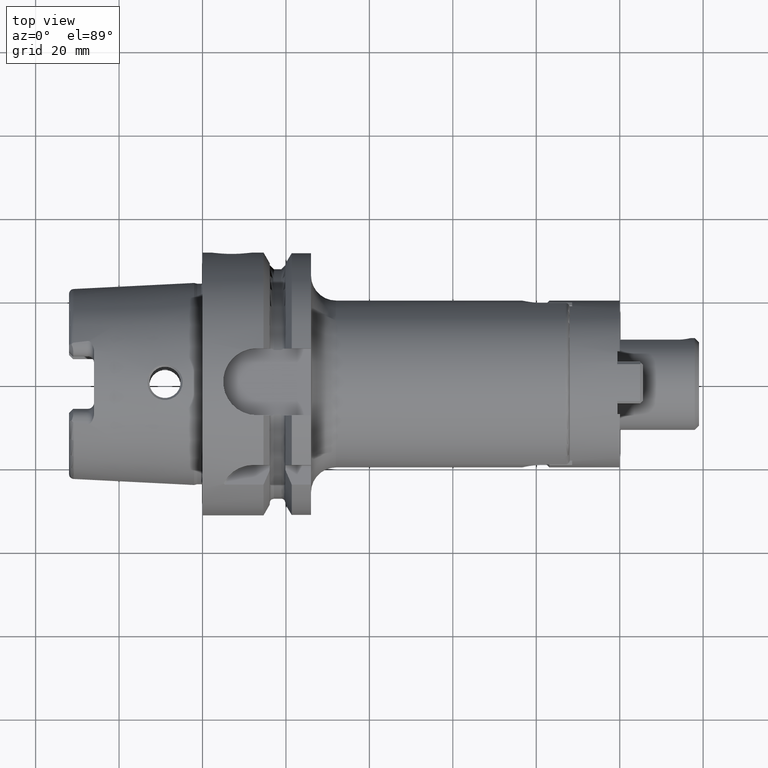
[diagram: clean part render]
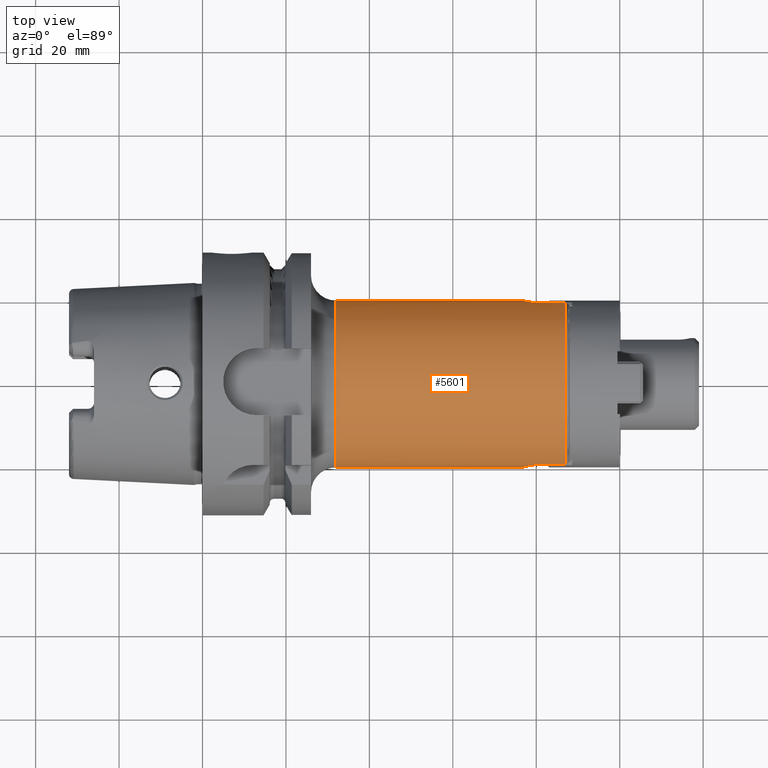
[diagram: same view with one face highlighted and labeled with its STEP entity id]
A machine part, top view. The second image highlights one B-rep face of the part: STEP entity #5601.
In plain terms, the highlighted cylindrical surface (partial cylindrical patch) has radius 20 mm, axis along (1, 0, 0).
Its self-contained STEP definition (entity closure, byte-faithful):
#1966=CARTESIAN_POINT('',(7.65E1,-2.E1,0.E0));
#1967=CARTESIAN_POINT('',(7.65E1,-2.E1,2.210316985101E-1));
#1968=CARTESIAN_POINT('',(7.652858433791E1,-1.999275187604E1,
6.622088010446E-1));
#1969=CARTESIAN_POINT('',(7.666250657120E1,-1.995934317472E1,1.330885321392E0));
#1970=CARTESIAN_POINT('',(7.688581336342E1,-1.990553805266E1,1.974846319321E0));
#1971=CARTESIAN_POINT('',(7.718759943961E1,-1.983663801983E1,2.572670306998E0));
#1972=CARTESIAN_POINT('',(7.756043524236E1,-1.975755263295E1,3.119690324571E0));
#1973=CARTESIAN_POINT('',(7.800440178715E1,-1.967220940632E1,3.616501821920E0));
#1974=CARTESIAN_POINT('',(7.850724505372E1,-1.958739316333E1,4.048210291657E0));
#1975=CARTESIAN_POINT('',(7.905352002141E1,-1.950960497338E1,4.405798185851E0));
#1976=CARTESIAN_POINT('',(7.963916058186E1,-1.944296624357E1,4.689570260974E0));
#1977=CARTESIAN_POINT('',(8.025682388552E1,-1.939167950742E1,4.896145221153E0));
#1978=CARTESIAN_POINT('',(8.089839903832E1,-1.935930844241E1,5.021881595025E0));
#1979=CARTESIAN_POINT('',(8.133133415069E1,-1.935193788746E1,5.05E0));
#1980=CARTESIAN_POINT('',(8.155E1,-1.935193788746E1,5.05E0));
#1982=CARTESIAN_POINT('',(3.2E1,0.E0,0.E0));
#1983=DIRECTION('',(1.E0,0.E0,0.E0));
#1984=DIRECTION('',(0.E0,1.E0,0.E0));
#1985=AXIS2_PLACEMENT_3D('',#1982,#1983,#1984);
#1987=CARTESIAN_POINT('',(8.155E1,1.935193788746E1,5.05E0));
#1988=CARTESIAN_POINT('',(8.133133265078E1,1.935193788746E1,5.05E0));
#1989=CARTESIAN_POINT('',(8.089839425174E1,1.935930868142E1,5.021880629584E0));
#1990=CARTESIAN_POINT('',(8.025682594412E1,1.939167923997E1,4.896146399930E0));
#1991=CARTESIAN_POINT('',(7.963914334958E1,1.944296799064E1,4.689562871749E0));
#1992=CARTESIAN_POINT('',(7.905352489755E1,1.950960432751E1,4.405801304566E0));
#1993=CARTESIAN_POINT('',(7.850721923821E1,1.958739700414E1,4.048191863392E0));
#1994=CARTESIAN_POINT('',(7.800437870493E1,1.967221351216E1,3.616481055142E0));
#1995=CARTESIAN_POINT('',(7.756039816815E1,1.975756026698E1,3.119639607895E0));
#1996=CARTESIAN_POINT('',(7.718761029064E1,1.983663569817E1,2.572688709544E0));
#1997=CARTESIAN_POINT('',(7.688578952302E1,1.990554354600E1,1.974793716571E0));
#1998=CARTESIAN_POINT('',(7.666250492037E1,1.995934365798E1,1.330873609399E0));
#1999=CARTESIAN_POINT('',(7.652858005106E1,1.999275292973E1,6.621807014034E-1));
#2000=CARTESIAN_POINT('',(7.65E1,2.E1,2.210212775057E-1));
#2001=CARTESIAN_POINT('',(7.65E1,2.E1,0.E0));
#2003=DIRECTION('',(1.E0,0.E0,0.E0));
#2004=VECTOR('',#2003,5.45E0);
#2005=CARTESIAN_POINT('',(8.155E1,1.935193788746E1,5.05E0));
#2006=LINE('',#2005,#2004);
#2007=CARTESIAN_POINT('',(8.7E1,0.E0,0.E0));
#2008=DIRECTION('',(-1.E0,0.E0,0.E0));
#2009=DIRECTION('',(0.E0,-9.675968943729E-1,2.525E-1));
#2010=AXIS2_PLACEMENT_3D('',#2007,#2008,#2009);
#2012=DIRECTION('',(1.E0,0.E0,0.E0));
#2013=VECTOR('',#2012,5.45E0);
#2014=CARTESIAN_POINT('',(8.155E1,-1.935193788746E1,5.05E0));
#2015=LINE('',#2014,#2013);
#2377=DIRECTION('',(-1.E0,0.E0,1.615640296066E-14));
#2378=VECTOR('',#2377,4.45E1);
#2379=CARTESIAN_POINT('',(7.65E1,2.E1,0.E0));
#2380=LINE('',#2379,#2378);
#2386=DIRECTION('',(-1.E0,0.E0,-1.635814752291E-14));
#2387=VECTOR('',#2386,4.45E1);
#2388=CARTESIAN_POINT('',(7.65E1,-2.E1,0.E0));
#2389=LINE('',#2388,#2387);
#3394=CARTESIAN_POINT('',(3.2E1,-2.E1,0.E0));
#3395=CARTESIAN_POINT('',(3.2E1,2.E1,0.E0));
#3396=VERTEX_POINT('',#3394);
#3397=VERTEX_POINT('',#3395);
#3428=VERTEX_POINT('',#1987);
#3429=VERTEX_POINT('',#2001);
#3430=CARTESIAN_POINT('',(8.7E1,1.935193788746E1,5.05E0));
#3431=VERTEX_POINT('',#3430);
#3445=CARTESIAN_POINT('',(8.155E1,-1.935193788746E1,5.05E0));
#3446=VERTEX_POINT('',#3445);
#3451=VERTEX_POINT('',#1966);
#3452=CARTESIAN_POINT('',(8.7E1,-1.935193788746E1,5.05E0));
#3453=VERTEX_POINT('',#3452);
#5579=CARTESIAN_POINT('',(2.135E1,0.E0,0.E0));
#5580=DIRECTION('',(1.E0,0.E0,0.E0));
#5581=DIRECTION('',(0.E0,-1.E0,0.E0));
#5582=AXIS2_PLACEMENT_3D('',#5579,#5580,#5581);
#5583=CYLINDRICAL_SURFACE('',#5582,2.E1);
#5585=ORIENTED_EDGE('',*,*,#5584,.F.);
#5587=ORIENTED_EDGE('',*,*,#5586,.T.);
#5588=ORIENTED_EDGE('',*,*,#5573,.F.);
#5590=ORIENTED_EDGE('',*,*,#5589,.F.);
#5592=ORIENTED_EDGE('',*,*,#5591,.F.);
#5594=ORIENTED_EDGE('',*,*,#5593,.T.);
#5596=ORIENTED_EDGE('',*,*,#5595,.F.);
#5598=ORIENTED_EDGE('',*,*,#5597,.F.);
#5599=EDGE_LOOP('',(#5585,#5587,#5588,#5590,#5592,#5594,#5596,#5598));
#5600=FACE_OUTER_BOUND('',#5599,.F.);
#5601=ADVANCED_FACE('',(#5600),#5583,.T.);
#1981=B_SPLINE_CURVE_WITH_KNOTS('',3,(#1966,#1967,#1968,#1969,#1970,#1971,#1972,
#1973,#1974,#1975,#1976,#1977,#1978,#1979,#1980),.UNSPECIFIED.,.F.,.F.,(4,1,1,1,
1,1,1,1,1,1,1,1,4),(0.E0,8.333333333333E-2,1.666666666667E-1,2.5E-1,
3.333333333333E-1,4.166666666667E-1,5.E-1,5.833333333333E-1,6.666666666667E-1,
7.5E-1,8.333333333333E-1,9.166666666667E-1,1.E0),.UNSPECIFIED.);
#1986=CIRCLE('',#1985,2.E1);
#2002=B_SPLINE_CURVE_WITH_KNOTS('',3,(#1987,#1988,#1989,#1990,#1991,#1992,#1993,
#1994,#1995,#1996,#1997,#1998,#1999,#2000,#2001),.UNSPECIFIED.,.F.,.F.,(4,1,1,1,
1,1,1,1,1,1,1,1,4),(0.E0,8.333333333333E-2,1.666666666667E-1,2.5E-1,
3.333333333333E-1,4.166666666667E-1,5.E-1,5.833333333333E-1,6.666666666667E-1,
7.5E-1,8.333333333333E-1,9.166666666667E-1,1.E0),.UNSPECIFIED.);
#2011=CIRCLE('',#2010,2.E1);
#5573=EDGE_CURVE('',#3397,#3396,#1986,.T.);
#5584=EDGE_CURVE('',#3451,#3446,#1981,.T.);
#5586=EDGE_CURVE('',#3451,#3396,#2389,.T.);
#5589=EDGE_CURVE('',#3429,#3397,#2380,.T.);
#5591=EDGE_CURVE('',#3428,#3429,#2002,.T.);
#5593=EDGE_CURVE('',#3428,#3431,#2006,.T.);
#5595=EDGE_CURVE('',#3453,#3431,#2011,.T.);
#5597=EDGE_CURVE('',#3446,#3453,#2015,.T.);